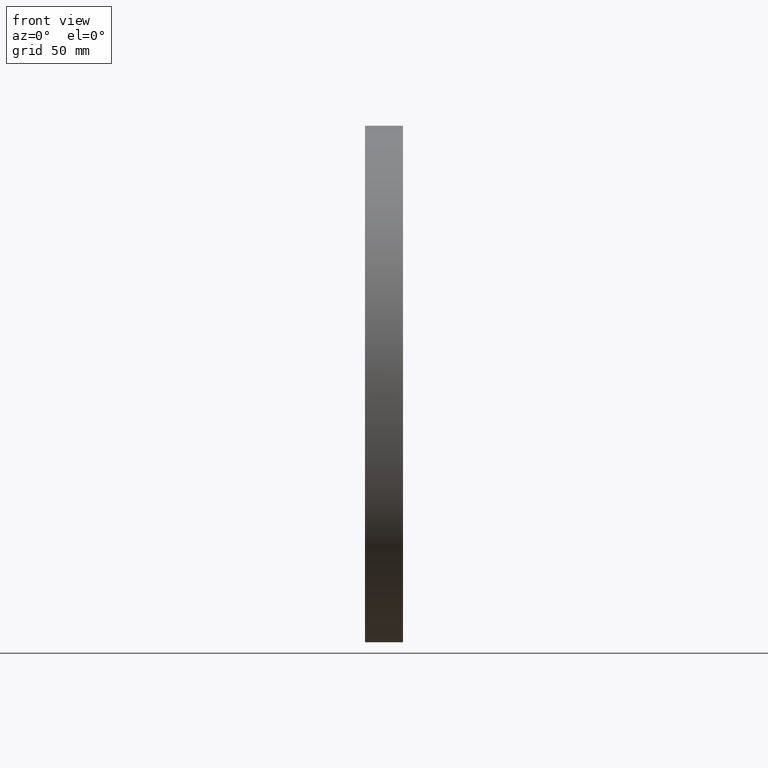
[diagram: clean part render]
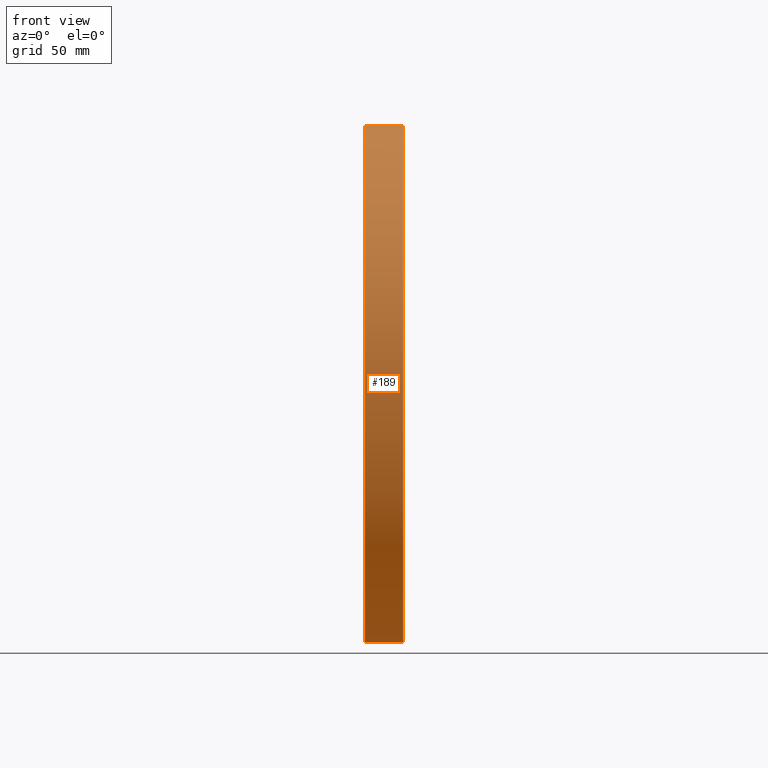
[diagram: same view with one face highlighted and labeled with its STEP entity id]
A machine part, front view. The second image highlights one B-rep face of the part: STEP entity #189.
In plain terms, the highlighted cylindrical surface (bore or boss wall) has radius 150 mm, axis along (-1, 0, 0).
Its self-contained STEP definition (entity closure, byte-faithful):
#39=ORIENTED_EDGE('',*,*,#69,.T.);
#40=ORIENTED_EDGE('',*,*,#67,.F.);
#67=EDGE_CURVE('',#84,#84,#101,.T.);
#69=EDGE_CURVE('',#86,#86,#103,.T.);
#84=VERTEX_POINT('',#340);
#86=VERTEX_POINT('',#345);
#101=CIRCLE('',#236,150.);
#103=CIRCLE('',#239,150.);
#124=EDGE_LOOP('',(#39));
#125=EDGE_LOOP('',(#40));
#158=FACE_BOUND('',#124,.T.);
#159=FACE_BOUND('',#125,.T.);
#180=CYLINDRICAL_SURFACE('',#238,150.);
#189=ADVANCED_FACE('',(#158,#159),#180,.T.);
#236=AXIS2_PLACEMENT_3D('',#339,#284,#285);
#238=AXIS2_PLACEMENT_3D('',#343,#288,#289);
#239=AXIS2_PLACEMENT_3D('',#344,#290,#291);
#284=DIRECTION('',(-1.,0.,0.));
#285=DIRECTION('',(0.,0.,1.));
#288=DIRECTION('',(-1.,0.,0.));
#289=DIRECTION('',(0.,0.,1.));
#290=DIRECTION('',(-1.,0.,0.));
#291=DIRECTION('',(0.,0.,1.));
#339=CARTESIAN_POINT('',(0.,0.,0.));
#340=CARTESIAN_POINT('',(0.,0.,150.));
#343=CARTESIAN_POINT('',(-60.,0.,0.));
#344=CARTESIAN_POINT('',(22.,0.,0.));
#345=CARTESIAN_POINT('',(22.,0.,150.));